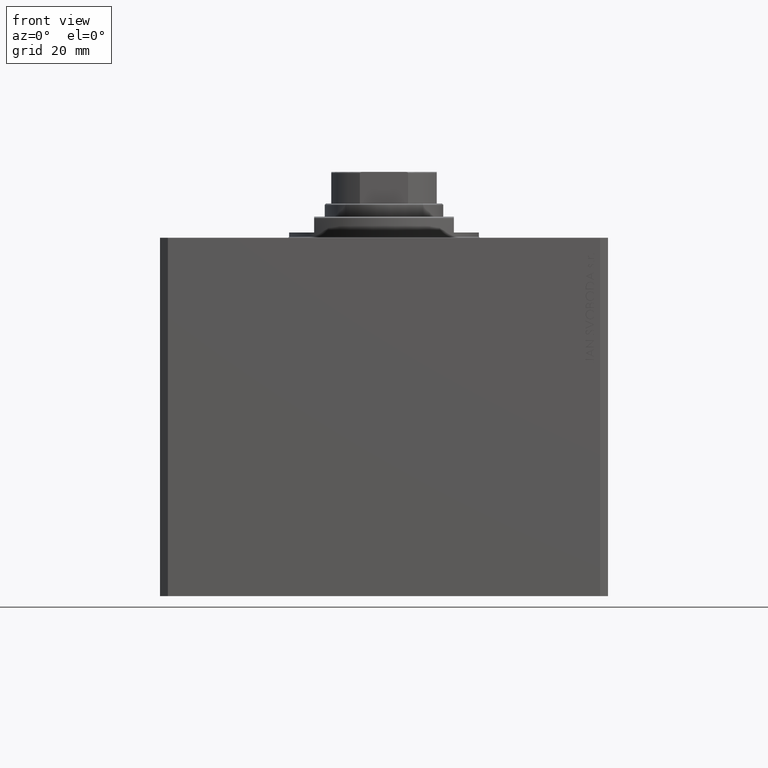
[diagram: clean part render]
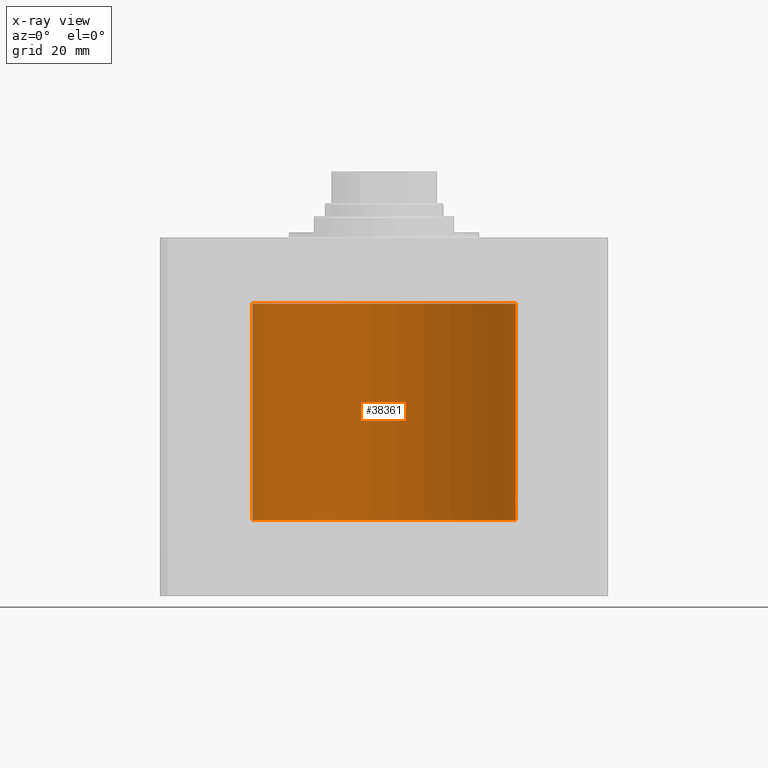
[diagram: x-ray — body ghosted, one internal face saturated and labeled with its STEP entity id]
A machine part, front view, then the same camera in x-ray: the body is ghosted and one INTERNAL B-rep face — a face not visible from any outside direction — is saturated and labeled: STEP entity #38361.
In plain terms, the highlighted cylindrical surface (partial cylindrical patch) has radius 50 mm, axis along (0, 0, 1).
Its self-contained STEP definition (entity closure, byte-faithful):
#9 = CARTESIAN_POINT ( 'NONE',  ( -49.96251288907240706, 1.935964606501246799, -37.51879205273049678 ) ) ;
#349 = CARTESIAN_POINT ( 'NONE',  ( 0.000000000000000000, 0.000000000000000000, -107.0999999999999943 ) ) ;
#751 = CARTESIAN_POINT ( 'NONE',  ( -50.00000000000000000, 6.123233989258355553E-15, -38.99999999999999289 ) ) ;
#1075 = CARTESIAN_POINT ( 'NONE',  ( 49.96993720661966876, 1.735115303979041013, -97.99682860132224960 ) ) ;
#2132 = CARTESIAN_POINT ( 'NONE',  ( 50.00000000000000711, 0.1321888607815029093, -101.0000000000000568 ) ) ;
#2258 = VERTEX_POINT ( 'NONE', #751 ) ;
#2838 = CARTESIAN_POINT ( 'NONE',  ( 49.99598718814007015, 0.6449352407546056209, -100.8976971177264659 ) ) ;
#3412 = EDGE_CURVE ( 'NONE', #12525, #4892, #16494, .T. ) ;
#3830 = CARTESIAN_POINT ( 'NONE',  ( -49.96992887184637055, 1.735355026673580214, -38.00276062309308855 ) ) ;
#3887 = VERTEX_POINT ( 'NONE', #44559 ) ;
#4068 = CARTESIAN_POINT ( 'NONE',  ( -49.96216141728076821, 1.947404903100933504, -36.47512611661414184 ) ) ;
#4261 = B_SPLINE_CURVE_WITH_KNOTS ( 'NONE', 3,
 ( #40598, #32727, #17931, #22448, #36790, #28891, #36545, #43714, #7660, #10763, #25324, #4068, #7888, #39898, #14817, #9, #29147, #18636, #3830, #44168, #33195, #37009, #7196, #44401, #11688, #4289, #36305, #21972, #40127, #11463 ),
 .UNSPECIFIED., .F., .F.,
 ( 4, 2, 2, 2, 2, 2, 2, 2, 2, 2, 2, 2, 2, 2, 4 ),
 ( 1.951448278188086515E-19, 0.0003908460679639682526, 0.0007816921359279362883, 0.001172538203891904324, 0.001563384271855872360, 0.002345076407783809082, 0.003126768543711746021, 0.003517614611675714056, 0.003908460679639682092, 0.004299306747603650128, 0.004690152815567618164, 0.005080998883531586199, 0.005471844951495554235, 0.005862691019459522271, 0.006253537087423490307 ),
 .UNSPECIFIED. ) ;
#4289 = CARTESIAN_POINT ( 'NONE',  ( -49.99599814809604226, 0.6440968921210813436, -38.89798495722402549 ) ) ;
#4318 = VERTEX_POINT ( 'NONE', #10510 ) ;
#4665 = CARTESIAN_POINT ( 'NONE',  ( 49.99005286890574951, 1.003169031662882960, -97.26488598342365322 ) ) ;
#4892 = VERTEX_POINT ( 'NONE', #12339 ) ;
#4898 = CARTESIAN_POINT ( 'NONE',  ( 49.95998398718716516, 2.000000000000563549, -99.00000000000001421 ) ) ;
#5000 = CARTESIAN_POINT ( 'NONE',  ( 0.000000000000000000, 0.000000000000000000, -107.0999999999999943 ) ) ;
#5010 = VECTOR ( 'NONE', #5786, 1000.000000000000000 ) ;
#5130 = CARTESIAN_POINT ( 'NONE',  ( 49.96051123778291725, 1.986950357331387140, -98.73708610268798225 ) ) ;
#5522 = DIRECTION ( 'NONE',  ( 0.000000000000000000, 0.000000000000000000, 1.000000000000000000 ) ) ;
#5675 = DIRECTION ( 'NONE',  ( -0.000000000000000000, -0.000000000000000000, 1.000000000000000000 ) ) ;
#5688 = EDGE_CURVE ( 'NONE', #40284, #35891, #26016, .T. ) ;
#5786 = DIRECTION ( 'NONE',  ( -0.000000000000000000, -0.000000000000000000, 1.000000000000000000 ) ) ;
#5969 = EDGE_CURVE ( 'NONE', #26126, #2258, #13083, .T. ) ;
#7196 = CARTESIAN_POINT ( 'NONE',  ( -49.98523123236354593, 1.219998263164736807, -38.59015112589698759 ) ) ;
#7522 = ORIENTED_EDGE ( 'NONE', *, *, #33491, .T. ) ;
#7660 = CARTESIAN_POINT ( 'NONE',  ( -49.98259925701036366, 1.322227939264704055, -35.49376754264949341 ) ) ;
#7888 = CARTESIAN_POINT ( 'NONE',  ( -49.95998770768563446, 1.999907061972440614, -36.73836523183381786 ) ) ;
#9773 = CARTESIAN_POINT ( 'NONE',  ( 49.99947616946592177, 0.2621653831979099958, -100.9870235173230242 ) ) ;
#9790 = ORIENTED_EDGE ( 'NONE', *, *, #40247, .T. ) ;
#9893 = CIRCLE ( 'NONE', #44112, 50.00000000000000000 ) ;
#10510 = CARTESIAN_POINT ( 'NONE',  ( 50.00000000000000000, 0.000000000000000000, -107.0999999999999943 ) ) ;
#10730 = CARTESIAN_POINT ( 'NONE',  ( 49.96952841668770162, 1.748193601366643479, -100.0058470866195393 ) ) ;
#10763 = CARTESIAN_POINT ( 'NONE',  ( -49.97476780406313424, 1.598950834465297177, -35.77059039179120958 ) ) ;
#10965 = CARTESIAN_POINT ( 'NONE',  ( 49.99007528730422933, 1.002097354324908984, -100.7357691082803939 ) ) ;
#11463 = CARTESIAN_POINT ( 'NONE',  ( -50.00000000000000000, 6.123233989258355553E-15, -38.99999999999999289 ) ) ;
#11600 = CARTESIAN_POINT ( 'NONE',  ( 49.97475596784978080, 1.590287868744626465, -97.78017932967553349 ) ) ;
#11688 = CARTESIAN_POINT ( 'NONE',  ( -49.99228773711749341, 0.8864865707480856782, -38.79759541170199100 ) ) ;
#12339 = CARTESIAN_POINT ( 'NONE',  ( -50.00000000000000000, 6.123233995736766085E-15, -24.99999999999999289 ) ) ;
#12525 = VERTEX_POINT ( 'NONE', #41185 ) ;
#12713 = CARTESIAN_POINT ( 'NONE',  ( 50.00000000000000000, 0.000000000000000000, -107.0999999999999943 ) ) ;
#13083 = LINE ( 'NONE', #45072, #34920 ) ;
#14817 = CARTESIAN_POINT ( 'NONE',  ( -49.96050770337905789, 1.987038794023258559, -37.26226128698008466 ) ) ;
#14857 = ORIENTED_EDGE ( 'NONE', *, *, #46522, .T. ) ;
#15255 = ORIENTED_EDGE ( 'NONE', *, *, #5688, .T. ) ;
#15421 = CARTESIAN_POINT ( 'NONE',  ( 49.97735290927441554, 1.507618726120014019, -97.67920111852207299 ) ) ;
#16129 = CARTESIAN_POINT ( 'NONE',  ( 49.99599990398858296, 0.6439560014968555013, -97.10196939152022821 ) ) ;
#16494 = LINE ( 'NONE', #19849, #37286 ) ;
#16851 = ORIENTED_EDGE ( 'NONE', *, *, #17364, .T. ) ;
#17223 = AXIS2_PLACEMENT_3D ( 'NONE', #349, #5522, #37993 ) ;
#17364 = EDGE_CURVE ( 'NONE', #3887, #4892, #9893, .T. ) ;
#17414 = CARTESIAN_POINT ( 'NONE',  ( 49.98524326844813004, 1.219541607305973274, -100.5905382022621666 ) ) ;
#17519 = CARTESIAN_POINT ( 'NONE',  ( 50.00000000000000000, 0.000000000000000000, -107.0999999999999943 ) ) ;
#17567 = DIRECTION ( 'NONE',  ( 1.000000000000000000, 0.000000000000000000, 0.000000000000000000 ) ) ;
#17931 = CARTESIAN_POINT ( 'NONE',  ( -49.99947640732126786, 0.2621063239499291098, -35.01297064418641014 ) ) ;
#18636 = CARTESIAN_POINT ( 'NONE',  ( -49.96768660357033554, 1.798001154690308967, -37.88564223843271606 ) ) ;
#18764 = CARTESIAN_POINT ( 'NONE',  ( 49.99947219664575471, 0.2630509640965526530, -97.01307477770993160 ) ) ;
#19573 = DIRECTION ( 'NONE',  ( -0.000000000000000000, -0.000000000000000000, 1.000000000000000000 ) ) ;
#19849 = CARTESIAN_POINT ( 'NONE',  ( -50.00000000000000000, 6.123233995736766085E-15, -107.0999999999999943 ) ) ;
#21936 = ORIENTED_EDGE ( 'NONE', *, *, #25033, .T. ) ;
#21972 = CARTESIAN_POINT ( 'NONE',  ( -49.99947195246410558, 0.2631107820817846776, -38.98691922436691470 ) ) ;
#22448 = CARTESIAN_POINT ( 'NONE',  ( -49.99748258676788026, 0.5177602892975206039, -35.06378986968200451 ) ) ;
#22579 = CARTESIAN_POINT ( 'NONE',  ( 49.98263500888552358, 1.320952538904951457, -97.49251590435537196 ) ) ;
#22608 = CARTESIAN_POINT ( 'NONE',  ( 50.00000000000000000, -6.476745247090812175E-24, -97.00000000000001421 ) ) ;
#22807 = CARTESIAN_POINT ( 'NONE',  ( 49.99229103891970993, 0.8862970221311291530, -97.20231340018578692 ) ) ;
#23353 = ORIENTED_EDGE ( 'NONE', *, *, #24322, .F. ) ;
#24322 = EDGE_CURVE ( 'NONE', #4318, #26126, #32464, .T. ) ;
#24630 = VERTEX_POINT ( 'NONE', #22608 ) ;
#25033 = EDGE_CURVE ( 'NONE', #4318, #40284, #34445, .T. ) ;
#25324 = CARTESIAN_POINT ( 'NONE',  ( -49.96953708402610062, 1.747948211813102892, -35.99374183287712725 ) ) ;
#25523 = CARTESIAN_POINT ( 'NONE',  ( 49.98259270595343651, 1.322475809934057889, -100.5060172839778971 ) ) ;
#26016 = B_SPLINE_CURVE_WITH_KNOTS ( 'NONE', 3,
 ( #34847, #2132, #9773, #38918, #2838, #40095, #10965, #17414, #25523, #32230, #10730, #46769, #43190, #28857 ),
 .UNSPECIFIED., .F., .F.,
 ( 4, 2, 2, 2, 2, 2, 4 ),
 ( 4.436058941706983627E-20, 0.0003909348706788146445, 0.0007818697413576291807, 0.001172804612036443825, 0.001563739482715258361, 0.002345609224072888084, 0.003127478965430518024 ),
 .UNSPECIFIED. ) ;
#26126 = VERTEX_POINT ( 'NONE', #36169 ) ;
#26866 = CARTESIAN_POINT ( 'NONE',  ( 49.99746746122490038, 0.5192910711913449884, -97.06417861566058036 ) ) ;
#27095 = CARTESIAN_POINT ( 'NONE',  ( 50.00000000000000000, 4.564789087886820642E-17, -101.0000000000000142 ) ) ;
#28857 = CARTESIAN_POINT ( 'NONE',  ( 49.95998398718716516, 2.000000000000563549, -99.00000000000001421 ) ) ;
#28891 = CARTESIAN_POINT ( 'NONE',  ( -49.99227820941651146, 0.8870121366447422107, -35.20266925059756602 ) ) ;
#28904 = B_SPLINE_CURVE_WITH_KNOTS ( 'NONE', 3,
 ( #4898, #30204, #5130, #44758, #37615, #44310, #1075, #11600, #15421, #22579, #41433, #4665, #22807, #16129, #26866, #18764, #40950, #45244 ),
 .UNSPECIFIED., .F., .F.,
 ( 4, 2, 2, 2, 2, 2, 2, 2, 4 ),
 ( 0.003127478965430518024, 0.003518236230679781373, 0.003908993495929044722, 0.004299750761178307637, 0.004690508026427571420, 0.005081265291676834335, 0.005472022556926097250, 0.005862779822175361033, 0.006253537087424623948 ),
 .UNSPECIFIED. ) ;
#29147 = CARTESIAN_POINT ( 'NONE',  ( -49.96398106625520086, 1.898185627324846303, -37.64347622409935212 ) ) ;
#29946 = CARTESIAN_POINT ( 'NONE',  ( 49.95998398718716516, 2.000000000000563549, -99.00000000000001421 ) ) ;
#30204 = CARTESIAN_POINT ( 'NONE',  ( 49.95998398718716516, 2.000000000000564881, -98.86956549692719420 ) ) ;
#31958 = DIRECTION ( 'NONE',  ( 1.000000000000000000, 0.000000000000000000, 0.000000000000000000 ) ) ;
#32007 = AXIS2_PLACEMENT_3D ( 'NONE', #5000, #19573, #31958 ) ;
#32230 = CARTESIAN_POINT ( 'NONE',  ( 49.97475955401471026, 1.599209500590070165, -100.2290851407538952 ) ) ;
#32464 = CIRCLE ( 'NONE', #17223, 50.00000000000000000 ) ;
#32727 = CARTESIAN_POINT ( 'NONE',  ( -50.00000000000000711, 0.1321588334531834663, -34.99999999999998579 ) ) ;
#33195 = CARTESIAN_POINT ( 'NONE',  ( -49.97734518528593384, 1.507874855161120076, -38.32050907330479106 ) ) ;
#33491 = EDGE_CURVE ( 'NONE', #12525, #2258, #4261, .T. ) ;
#34445 = LINE ( 'NONE', #12713, #5010 ) ;
#34847 = CARTESIAN_POINT ( 'NONE',  ( 50.00000000000000000, 4.564789087886820642E-17, -101.0000000000000142 ) ) ;
#34920 = VECTOR ( 'NONE', #5675, 1000.000000000000000 ) ;
#35187 = DIRECTION ( 'NONE',  ( -0.000000000000000000, -0.000000000000000000, 1.000000000000000000 ) ) ;
#35692 = DIRECTION ( 'NONE',  ( 0.000000000000000000, 0.000000000000000000, 1.000000000000000000 ) ) ;
#35891 = VERTEX_POINT ( 'NONE', #29946 ) ;
#36169 = CARTESIAN_POINT ( 'NONE',  ( -50.00000000000000000, 6.123233995736766085E-15, -107.0999999999999943 ) ) ;
#36305 = CARTESIAN_POINT ( 'NONE',  ( -49.99746633848589283, 0.5194059499681270564, -38.93579253716512767 ) ) ;
#36545 = CARTESIAN_POINT ( 'NONE',  ( -49.99007938266582585, 1.001891274688315958, -35.26411427938287346 ) ) ;
#36790 = CARTESIAN_POINT ( 'NONE',  ( -49.99598898362840771, 0.6447919409892277631, -35.10225615370830354 ) ) ;
#36826 = VECTOR ( 'NONE', #35187, 1000.000000000000000 ) ;
#37009 = CARTESIAN_POINT ( 'NONE',  ( -49.98262832829516356, 1.321205413082626068, -38.50726475708437135 ) ) ;
#37286 = VECTOR ( 'NONE', #38237, 1000.000000000000000 ) ;
#37615 = CARTESIAN_POINT ( 'NONE',  ( 49.96398801900035380, 1.898003203340656198, -98.35599117910246036 ) ) ;
#37719 = CYLINDRICAL_SURFACE ( 'NONE', #32007, 50.00000000000000000 ) ;
#37993 = DIRECTION ( 'NONE',  ( 1.000000000000000000, 0.000000000000000000, 0.000000000000000000 ) ) ;
#38237 = DIRECTION ( 'NONE',  ( -0.000000000000000000, -0.000000000000000000, 1.000000000000000000 ) ) ;
#38361 = ADVANCED_FACE ( 'NONE', ( #45118 ), #37719, .F. ) ;
#38918 = CARTESIAN_POINT ( 'NONE',  ( 49.99748146545036320, 0.5178754880116728243, -100.9361813255630267 ) ) ;
#38968 = EDGE_LOOP ( 'NONE', ( #39158, #23353, #21936, #15255, #9790, #14857, #16851, #42317, #7522 ) ) ;
#39158 = ORIENTED_EDGE ( 'NONE', *, *, #5969, .F. ) ;
#39898 = CARTESIAN_POINT ( 'NONE',  ( -49.95998213453558634, 2.000046279225707213, -37.12975027192857880 ) ) ;
#40095 = CARTESIAN_POINT ( 'NONE',  ( 49.99227494580978259, 0.8871990329080465809, -100.7972405769406237 ) ) ;
#40127 = CARTESIAN_POINT ( 'NONE',  ( -50.00000000000001421, 0.1305374531515847703, -38.99999999999999289 ) ) ;
#40247 = EDGE_CURVE ( 'NONE', #35891, #24630, #28904, .T. ) ;
#40284 = VERTEX_POINT ( 'NONE', #27095 ) ;
#40598 = CARTESIAN_POINT ( 'NONE',  ( -50.00000000000000000, -9.003882097956092458E-15, -34.99999999999999289 ) ) ;
#40950 = CARTESIAN_POINT ( 'NONE',  ( 50.00000000000000000, 0.1305077942112368161, -97.00000000000000000 ) ) ;
#41185 = CARTESIAN_POINT ( 'NONE',  ( -50.00000000000000000, -9.003882097956092458E-15, -34.99999999999999289 ) ) ;
#41433 = CARTESIAN_POINT ( 'NONE',  ( 49.98523696312182096, 1.219762141829697999, -97.40967013674318764 ) ) ;
#42317 = ORIENTED_EDGE ( 'NONE', *, *, #3412, .F. ) ;
#43190 = CARTESIAN_POINT ( 'NONE',  ( 49.95998398718717226, 2.000000000000561773, -99.26098757528311012 ) ) ;
#43714 = CARTESIAN_POINT ( 'NONE',  ( -49.98524905102831184, 1.219303128102697586, -35.40928153240807319 ) ) ;
#44112 = AXIS2_PLACEMENT_3D ( 'NONE', #46425, #35692, #17567 ) ;
#44168 = CARTESIAN_POINT ( 'NONE',  ( -49.97474787754178749, 1.590541763713786860, -38.21949285922860184 ) ) ;
#44310 = CARTESIAN_POINT ( 'NONE',  ( 49.96769480970100119, 1.797773714148178881, -98.11390000902665065 ) ) ;
#44401 = CARTESIAN_POINT ( 'NONE',  ( -49.99004874905787688, 1.003375892571688910, -38.73499659467171341 ) ) ;
#44559 = CARTESIAN_POINT ( 'NONE',  ( 50.00000000000000000, 0.000000000000000000, -24.99999999999999289 ) ) ;
#44758 = CARTESIAN_POINT ( 'NONE',  ( 49.96251892914505532, 1.935809163618958051, -98.48063661859161755 ) ) ;
#45072 = CARTESIAN_POINT ( 'NONE',  ( -50.00000000000000000, 6.123233995736766085E-15, -107.0999999999999943 ) ) ;
#45118 = FACE_OUTER_BOUND ( 'NONE', #38968, .T. ) ;
#45244 = CARTESIAN_POINT ( 'NONE',  ( 50.00000000000000000, -6.476745247090812175E-24, -97.00000000000001421 ) ) ;
#46425 = CARTESIAN_POINT ( 'NONE',  ( 0.000000000000000000, 0.000000000000000000, -24.99999999999999289 ) ) ;
#46522 = EDGE_CURVE ( 'NONE', #24630, #3887, #46863, .T. ) ;
#46769 = CARTESIAN_POINT ( 'NONE',  ( 49.96215500645249818, 1.947567242801464760, -99.52430054767010859 ) ) ;
#46863 = LINE ( 'NONE', #17519, #36826 ) ;